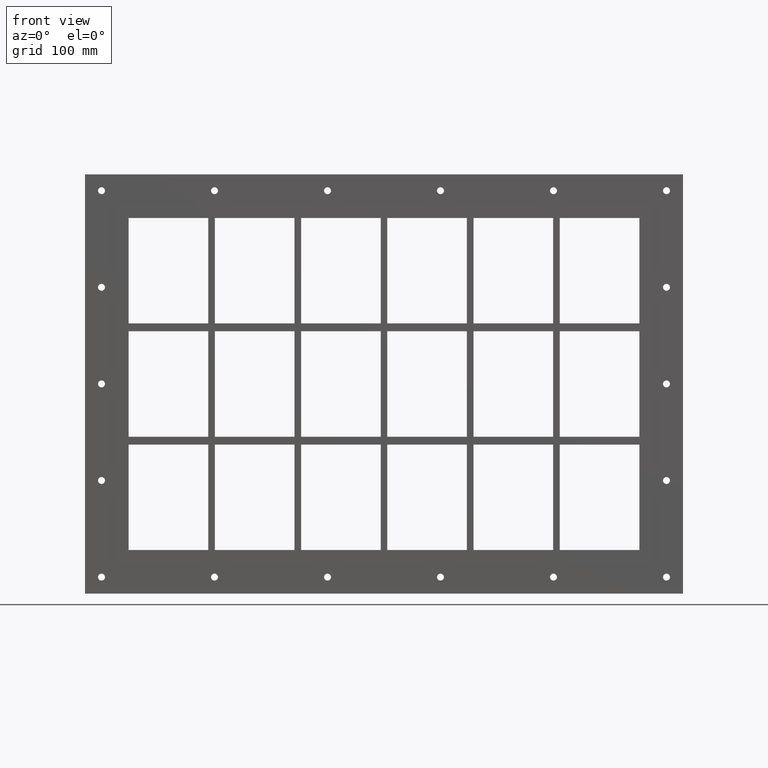
[diagram: clean part render]
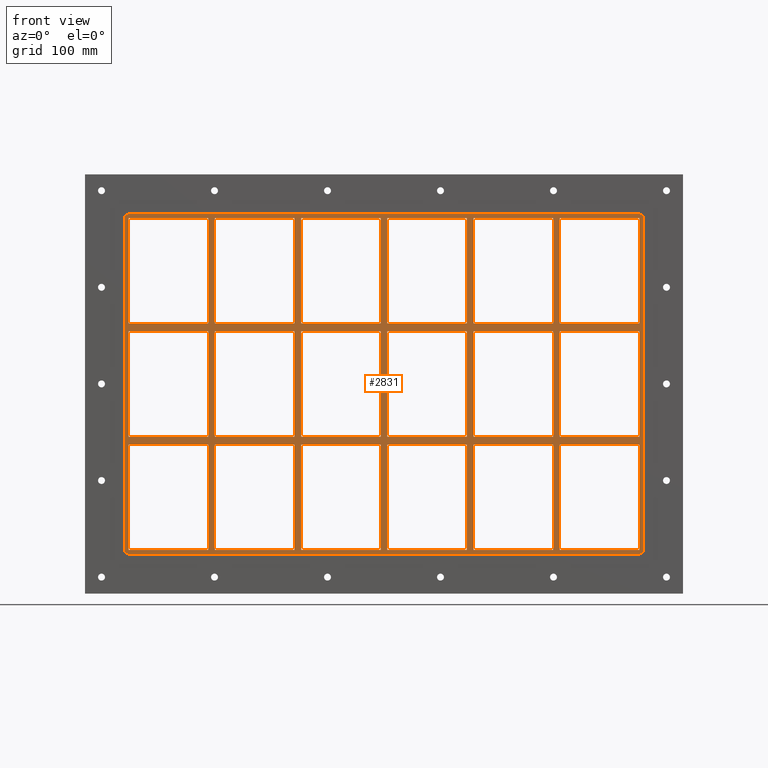
[diagram: same view with one face highlighted and labeled with its STEP entity id]
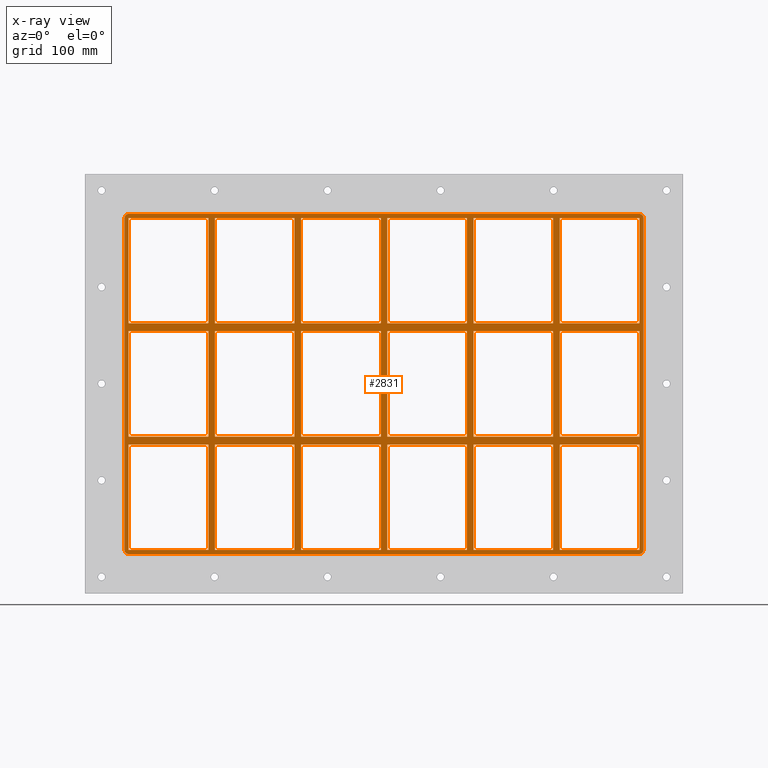
[diagram: x-ray of the same camera — body ghosted, the highlighted face saturated]
A machine part, front view. The second image highlights one B-rep face of the part: STEP entity #2831.
The next image is the same camera in x-ray: the body ghosted, the highlighted face saturated — about 0% of this face is hidden behind the body in this view.
In plain terms, the highlighted planar face has unit normal (0, 1, 0).
Its self-contained STEP definition (entity closure, byte-faithful):
#577=CARTESIAN_POINT('',(-266.00000000000216,-3.0,79.74999999998964));
#578=VERTEX_POINT('',#577);
#587=CARTESIAN_POINT('',(-386.50000000000045,-3.0,79.749999999989683));
#588=VERTEX_POINT('',#587);
#589=CARTESIAN_POINT('',(-266.00000000000227,-3.0,79.749999999989697));
#590=DIRECTION('',(-1.0,0.0,0.0));
#591=VECTOR('',#590,120.49999999999818);
#592=LINE('',#589,#591);
#593=EDGE_CURVE('',#578,#588,#592,.T.);
#617=CARTESIAN_POINT('',(-135.50000000000216,-3.0,79.74999999998974));
#618=VERTEX_POINT('',#617);
#627=CARTESIAN_POINT('',(-256.00000000000364,-3.0,79.749999999989711));
#628=VERTEX_POINT('',#627);
#629=CARTESIAN_POINT('',(-135.50000000000216,-3.0,79.74999999998974));
#630=DIRECTION('',(-1.0,0.0,0.0));
#631=VECTOR('',#630,120.50000000000148);
#632=LINE('',#629,#631);
#633=EDGE_CURVE('',#618,#628,#632,.T.);
#657=CARTESIAN_POINT('',(-5.000000000002132,-3.0,79.749999999989782));
#658=VERTEX_POINT('',#657);
#667=CARTESIAN_POINT('',(-125.50000000000367,-3.0,79.74999999998974));
#668=VERTEX_POINT('',#667);
#669=CARTESIAN_POINT('',(-5.00000000000216,-3.0,79.749999999989768));
#670=DIRECTION('',(-1.0,0.0,0.0));
#671=VECTOR('',#670,120.50000000000148);
#672=LINE('',#669,#671);
#673=EDGE_CURVE('',#658,#668,#672,.T.);
#697=CARTESIAN_POINT('',(125.49999999999791,-3.0,79.749999999989825));
#698=VERTEX_POINT('',#697);
#707=CARTESIAN_POINT('',(4.999999999996376,-3.0,79.749999999989782));
#708=VERTEX_POINT('',#707);
#709=CARTESIAN_POINT('',(125.4999999999979,-3.0,79.749999999989811));
#710=DIRECTION('',(-1.0,0.0,0.0));
#711=VECTOR('',#710,120.50000000000153);
#712=LINE('',#709,#711);
#713=EDGE_CURVE('',#698,#708,#712,.T.);
#739=CARTESIAN_POINT('',(265.99999999999642,-3.0,79.749999999989853));
#740=VERTEX_POINT('',#739);
#755=CARTESIAN_POINT('',(386.49999999999636,-3.0,79.749999999989882));
#756=VERTEX_POINT('',#755);
#763=CARTESIAN_POINT('',(386.49999999999636,-3.0,79.749999999989882));
#764=DIRECTION('',(-1.0,0.0,0.0));
#765=VECTOR('',#764,120.49999999999994);
#766=LINE('',#763,#765);
#767=EDGE_CURVE('',#756,#740,#766,.T.);
#777=CARTESIAN_POINT('',(255.99999999999793,-3.0,79.749999999989853));
#778=VERTEX_POINT('',#777);
#787=CARTESIAN_POINT('',(135.49999999999642,-3.0,79.749999999989825));
#788=VERTEX_POINT('',#787);
#789=CARTESIAN_POINT('',(255.99999999999793,-3.0,79.749999999989839));
#790=DIRECTION('',(-1.0,0.0,0.0));
#791=VECTOR('',#790,120.50000000000151);
#792=LINE('',#789,#791);
#793=EDGE_CURVE('',#778,#788,#792,.T.);
#819=CARTESIAN_POINT('',(-266.00000000000216,-3.0,91.750000000000114));
#820=VERTEX_POINT('',#819);
#835=CARTESIAN_POINT('',(-386.50000000000045,-3.0,91.750000000000085));
#836=VERTEX_POINT('',#835);
#843=CARTESIAN_POINT('',(-386.50000000000045,-3.0,91.750000000000085));
#844=DIRECTION('',(1.0,0.0,0.0));
#845=VECTOR('',#844,120.49999999999835);
#846=LINE('',#843,#845);
#847=EDGE_CURVE('',#836,#820,#846,.T.);
#857=CARTESIAN_POINT('',(265.99999999999636,-3.0,91.750000000000085));
#858=VERTEX_POINT('',#857);
#867=CARTESIAN_POINT('',(386.50000000000023,-3.0,91.750000000000085));
#868=VERTEX_POINT('',#867);
#869=CARTESIAN_POINT('',(265.99999999999636,-3.0,91.750000000000085));
#870=DIRECTION('',(1.0,0.0,0.0));
#871=VECTOR('',#870,120.50000000000387);
#872=LINE('',#869,#871);
#873=EDGE_CURVE('',#858,#868,#872,.T.);
#899=CARTESIAN_POINT('',(-135.50000000000213,-3.0,91.750000000000085));
#900=VERTEX_POINT('',#899);
#915=CARTESIAN_POINT('',(-256.00000000000364,-3.0,91.750000000000085));
#916=VERTEX_POINT('',#915);
#923=CARTESIAN_POINT('',(-256.00000000000364,-3.0,91.750000000000085));
#924=DIRECTION('',(1.0,0.0,0.0));
#925=VECTOR('',#924,120.50000000000153);
#926=LINE('',#923,#925);
#927=EDGE_CURVE('',#916,#900,#926,.T.);
#939=CARTESIAN_POINT('',(-5.000000000002132,-3.0,91.750000000000085));
#940=VERTEX_POINT('',#939);
#955=CARTESIAN_POINT('',(-125.50000000000364,-3.0,91.750000000000085));
#956=VERTEX_POINT('',#955);
#963=CARTESIAN_POINT('',(-125.50000000000358,-3.0,91.750000000000085));
#964=DIRECTION('',(1.0,0.0,0.0));
#965=VECTOR('',#964,120.50000000000148);
#966=LINE('',#963,#965);
#967=EDGE_CURVE('',#956,#940,#966,.T.);
#979=CARTESIAN_POINT('',(125.49999999999791,-3.0,91.750000000000085));
#980=VERTEX_POINT('',#979);
#995=CARTESIAN_POINT('',(4.999999999996376,-3.0,91.750000000000085));
#996=VERTEX_POINT('',#995);
#1003=CARTESIAN_POINT('',(4.999999999996419,-3.0,91.750000000000085));
#1004=DIRECTION('',(1.0,0.0,0.0));
#1005=VECTOR('',#1004,120.50000000000153);
#1006=LINE('',#1003,#1005);
#1007=EDGE_CURVE('',#996,#980,#1006,.T.);
#1019=CARTESIAN_POINT('',(255.99999999999781,-3.0,91.750000000000085));
#1020=VERTEX_POINT('',#1019);
#1035=CARTESIAN_POINT('',(135.49999999999642,-3.0,91.750000000000085));
#1036=VERTEX_POINT('',#1035);
#1043=CARTESIAN_POINT('',(135.49999999999648,-3.0,91.750000000000085));
#1044=DIRECTION('',(1.0,0.0,0.0));
#1045=VECTOR('',#1044,120.50000000000136);
#1046=LINE('',#1043,#1045);
#1047=EDGE_CURVE('',#1036,#1020,#1046,.T.);
#1066=CARTESIAN_POINT('',(-386.50000000000006,-3.0,251.25));
#1067=VERTEX_POINT('',#1066);
#1074=CARTESIAN_POINT('',(-386.50000000000011,-3.0,91.750000000000085));
#1075=DIRECTION('',(0.0,0.0,1.0));
#1076=VECTOR('',#1075,159.49999999999991);
#1077=LINE('',#1074,#1076);
#1078=EDGE_CURVE('',#836,#1067,#1077,.T.);
#1097=CARTESIAN_POINT('',(386.50000000000023,-3.0,-79.749999999999943));
#1098=VERTEX_POINT('',#1097);
#1105=CARTESIAN_POINT('',(386.50000000000006,-3.0,79.749999999989882));
#1106=DIRECTION('',(0.0,0.0,-1.0));
#1107=VECTOR('',#1106,159.49999999998983);
#1108=LINE('',#1105,#1107);
#1109=EDGE_CURVE('',#756,#1098,#1108,.T.);
#1120=CARTESIAN_POINT('',(386.50000000000006,-3.0,251.25));
#1121=VERTEX_POINT('',#1120);
#1122=CARTESIAN_POINT('',(386.50000000000006,-3.0,251.25));
#1123=DIRECTION('',(0.0,0.0,-1.0));
#1124=VECTOR('',#1123,159.49999999999991);
#1125=LINE('',#1122,#1124);
#1126=EDGE_CURVE('',#1121,#868,#1125,.T.);
#1151=CARTESIAN_POINT('',(255.9999999999979,-3.0,251.25));
#1152=VERTEX_POINT('',#1151);
#1153=CARTESIAN_POINT('',(255.9999999999979,-3.0,91.750000000000114));
#1154=DIRECTION('',(0.0,0.0,1.0));
#1155=VECTOR('',#1154,159.49999999999989);
#1156=LINE('',#1153,#1155);
#1157=EDGE_CURVE('',#1020,#1152,#1156,.T.);
#1190=CARTESIAN_POINT('',(265.99999999999642,-3.0,251.25));
#1191=VERTEX_POINT('',#1190);
#1198=CARTESIAN_POINT('',(265.99999999999642,-3.0,251.25));
#1199=DIRECTION('',(0.0,0.0,-1.0));
#1200=VECTOR('',#1199,159.49999999999991);
#1201=LINE('',#1198,#1200);
#1202=EDGE_CURVE('',#1191,#858,#1201,.T.);
#1213=CARTESIAN_POINT('',(125.49999999999787,-3.0,251.25));
#1214=VERTEX_POINT('',#1213);
#1215=CARTESIAN_POINT('',(125.49999999999791,-3.0,91.750000000000114));
#1216=DIRECTION('',(0.0,0.0,1.0));
#1217=VECTOR('',#1216,159.49999999999989);
#1218=LINE('',#1215,#1217);
#1219=EDGE_CURVE('',#980,#1214,#1218,.T.);
#1252=CARTESIAN_POINT('',(135.49999999999642,-3.0,251.25));
#1253=VERTEX_POINT('',#1252);
#1260=CARTESIAN_POINT('',(135.49999999999642,-3.0,251.25));
#1261=DIRECTION('',(0.0,0.0,-1.0));
#1262=VECTOR('',#1261,159.49999999999991);
#1263=LINE('',#1260,#1262);
#1264=EDGE_CURVE('',#1253,#1036,#1263,.T.);
#1275=CARTESIAN_POINT('',(-5.000000000002167,-3.0,251.25));
#1276=VERTEX_POINT('',#1275);
#1277=CARTESIAN_POINT('',(-5.000000000002133,-3.0,91.750000000000114));
#1278=DIRECTION('',(0.0,0.0,1.0));
#1279=VECTOR('',#1278,159.49999999999989);
#1280=LINE('',#1277,#1279);
#1281=EDGE_CURVE('',#940,#1276,#1280,.T.);
#1314=CARTESIAN_POINT('',(4.999999999996376,-3.0,251.25));
#1315=VERTEX_POINT('',#1314);
#1322=CARTESIAN_POINT('',(4.999999999996376,-3.0,251.25));
#1323=DIRECTION('',(0.0,0.0,-1.0));
#1324=VECTOR('',#1323,159.49999999999991);
#1325=LINE('',#1322,#1324);
#1326=EDGE_CURVE('',#1315,#996,#1325,.T.);
#1337=CARTESIAN_POINT('',(-135.50000000000216,-3.0,251.25));
#1338=VERTEX_POINT('',#1337);
#1339=CARTESIAN_POINT('',(-135.50000000000216,-3.0,91.750000000000114));
#1340=DIRECTION('',(0.0,0.0,1.0));
#1341=VECTOR('',#1340,159.49999999999989);
#1342=LINE('',#1339,#1341);
#1343=EDGE_CURVE('',#900,#1338,#1342,.T.);
#1376=CARTESIAN_POINT('',(-125.50000000000364,-3.0,251.25));
#1377=VERTEX_POINT('',#1376);
#1384=CARTESIAN_POINT('',(-125.50000000000364,-3.0,251.25));
#1385=DIRECTION('',(0.0,0.0,-1.0));
#1386=VECTOR('',#1385,159.49999999999991);
#1387=LINE('',#1384,#1386);
#1388=EDGE_CURVE('',#1377,#956,#1387,.T.);
#1399=CARTESIAN_POINT('',(-266.00000000000216,-3.0,251.25));
#1400=VERTEX_POINT('',#1399);
#1401=CARTESIAN_POINT('',(-266.0000000000021,-3.0,91.750000000000114));
#1402=DIRECTION('',(0.0,0.0,1.0));
#1403=VECTOR('',#1402,159.49999999999989);
#1404=LINE('',#1401,#1403);
#1405=EDGE_CURVE('',#820,#1400,#1404,.T.);
#1438=CARTESIAN_POINT('',(-266.0000000000021,-3.0,-79.749999999999943));
#1439=VERTEX_POINT('',#1438);
#1446=CARTESIAN_POINT('',(-266.0000000000021,-3.0,-79.749999999999943));
#1447=DIRECTION('',(0.0,0.0,1.0));
#1448=VECTOR('',#1447,159.4999999999896);
#1449=LINE('',#1446,#1448);
#1450=EDGE_CURVE('',#1439,#578,#1449,.T.);
#1469=CARTESIAN_POINT('',(-256.00000000000364,-3.0,251.25));
#1470=VERTEX_POINT('',#1469);
#1477=CARTESIAN_POINT('',(-256.00000000000364,-3.0,251.25));
#1478=DIRECTION('',(0.0,0.0,-1.0));
#1479=VECTOR('',#1478,159.49999999999991);
#1480=LINE('',#1477,#1479);
#1481=EDGE_CURVE('',#1470,#916,#1480,.T.);
#1975=CARTESIAN_POINT('',(255.99999999999795,-3.0,-79.749999999999943));
#1976=VERTEX_POINT('',#1975);
#1983=CARTESIAN_POINT('',(255.99999999999795,-3.0,-79.749999999999943));
#1984=DIRECTION('',(0.0,0.0,1.0));
#1985=VECTOR('',#1984,159.49999999998983);
#1986=LINE('',#1983,#1985);
#1987=EDGE_CURVE('',#1976,#778,#1986,.T.);
#1997=CARTESIAN_POINT('',(255.99999999999795,-3.0,-91.750000000010175));
#1998=VERTEX_POINT('',#1997);
#2006=CARTESIAN_POINT('',(255.99999999999798,-3.0,-251.25));
#2007=VERTEX_POINT('',#2006);
#2014=CARTESIAN_POINT('',(255.99999999999798,-3.0,-251.25));
#2015=DIRECTION('',(0.0,0.0,1.0));
#2016=VECTOR('',#2015,159.49999999998983);
#2017=LINE('',#2014,#2016);
#2018=EDGE_CURVE('',#2007,#1998,#2017,.T.);
#2029=CARTESIAN_POINT('',(265.99999999999642,-3.0,-79.749999999999943));
#2030=VERTEX_POINT('',#2029);
#2031=CARTESIAN_POINT('',(265.99999999999642,-3.0,79.749999999989853));
#2032=DIRECTION('',(0.0,0.0,-1.0));
#2033=VECTOR('',#2032,159.4999999999898);
#2034=LINE('',#2031,#2033);
#2035=EDGE_CURVE('',#740,#2030,#2034,.T.);
#2052=CARTESIAN_POINT('',(265.99999999999642,-3.0,-91.750000000010132));
#2053=VERTEX_POINT('',#2052);
#2060=CARTESIAN_POINT('',(265.99999999999642,-3.0,-251.24999999998647));
#2061=VERTEX_POINT('',#2060);
#2062=CARTESIAN_POINT('',(265.99999999999642,-3.0,-91.750000000010118));
#2063=DIRECTION('',(0.0,0.0,-1.0));
#2064=VECTOR('',#2063,159.49999999997635);
#2065=LINE('',#2062,#2064);
#2066=EDGE_CURVE('',#2053,#2061,#2065,.T.);
#2085=CARTESIAN_POINT('',(125.49999999999795,-3.0,-79.749999999999943));
#2086=VERTEX_POINT('',#2085);
#2093=CARTESIAN_POINT('',(125.49999999999794,-3.0,-79.749999999999943));
#2094=DIRECTION('',(0.0,0.0,1.0));
#2095=VECTOR('',#2094,159.49999999998983);
#2096=LINE('',#2093,#2095);
#2097=EDGE_CURVE('',#2086,#698,#2096,.T.);
#2107=CARTESIAN_POINT('',(125.49999999999795,-3.0,-91.750000000010203));
#2108=VERTEX_POINT('',#2107);
#2116=CARTESIAN_POINT('',(125.49999999999798,-3.0,-251.25));
#2117=VERTEX_POINT('',#2116);
#2124=CARTESIAN_POINT('',(125.49999999999798,-3.0,-251.25));
#2125=DIRECTION('',(0.0,0.0,1.0));
#2126=VECTOR('',#2125,159.4999999999898);
#2127=LINE('',#2124,#2126);
#2128=EDGE_CURVE('',#2117,#2108,#2127,.T.);
#2139=CARTESIAN_POINT('',(135.49999999999642,-3.0,-79.749999999999943));
#2140=VERTEX_POINT('',#2139);
#2141=CARTESIAN_POINT('',(135.49999999999642,-3.0,79.749999999989825));
#2142=DIRECTION('',(0.0,0.0,-1.0));
#2143=VECTOR('',#2142,159.49999999998977);
#2144=LINE('',#2141,#2143);
#2145=EDGE_CURVE('',#788,#2140,#2144,.T.);
#2162=CARTESIAN_POINT('',(135.49999999999642,-3.0,-91.750000000010203));
#2163=VERTEX_POINT('',#2162);
#2170=CARTESIAN_POINT('',(135.49999999999642,-3.0,-251.24999999998647));
#2171=VERTEX_POINT('',#2170);
#2172=CARTESIAN_POINT('',(135.49999999999642,-3.0,-91.750000000010232));
#2173=DIRECTION('',(0.0,0.0,-1.0));
#2174=VECTOR('',#2173,159.49999999997624);
#2175=LINE('',#2172,#2174);
#2176=EDGE_CURVE('',#2163,#2171,#2175,.T.);
#2195=CARTESIAN_POINT('',(-5.000000000002097,-3.0,-79.749999999999943));
#2196=VERTEX_POINT('',#2195);
#2203=CARTESIAN_POINT('',(-5.000000000002097,-3.0,-79.749999999999943));
#2204=DIRECTION('',(0.0,0.0,1.0));
#2205=VECTOR('',#2204,159.49999999998971);
#2206=LINE('',#2203,#2205);
#2207=EDGE_CURVE('',#2196,#658,#2206,.T.);
#2217=CARTESIAN_POINT('',(-5.000000000002094,-3.0,-91.750000000010232));
#2218=VERTEX_POINT('',#2217);
#2226=CARTESIAN_POINT('',(-5.000000000002061,-3.0,-251.25));
#2227=VERTEX_POINT('',#2226);
#2234=CARTESIAN_POINT('',(-5.000000000002061,-3.0,-251.25));
#2235=DIRECTION('',(0.0,0.0,1.0));
#2236=VECTOR('',#2235,159.49999999998977);
#2237=LINE('',#2234,#2236);
#2238=EDGE_CURVE('',#2227,#2218,#2237,.T.);
#2249=CARTESIAN_POINT('',(4.999999999996376,-3.0,-79.749999999999943));
#2250=VERTEX_POINT('',#2249);
#2251=CARTESIAN_POINT('',(4.999999999996376,-3.0,79.749999999989768));
#2252=DIRECTION('',(0.0,0.0,-1.0));
#2253=VECTOR('',#2252,159.49999999998971);
#2254=LINE('',#2251,#2253);
#2255=EDGE_CURVE('',#708,#2250,#2254,.T.);
#2272=CARTESIAN_POINT('',(4.999999999996376,-3.0,-91.750000000010203));
#2273=VERTEX_POINT('',#2272);
#2280=CARTESIAN_POINT('',(4.999999999996376,-3.0,-251.24999999998647));
#2281=VERTEX_POINT('',#2280);
#2282=CARTESIAN_POINT('',(4.999999999996376,-3.0,-91.750000000010232));
#2283=DIRECTION('',(0.0,0.0,-1.0));
#2284=VECTOR('',#2283,159.49999999997624);
#2285=LINE('',#2282,#2284);
#2286=EDGE_CURVE('',#2273,#2281,#2285,.T.);
#2305=CARTESIAN_POINT('',(-135.5000000000021,-3.0,-79.749999999999943));
#2306=VERTEX_POINT('',#2305);
#2313=CARTESIAN_POINT('',(-135.5000000000021,-3.0,-79.749999999999943));
#2314=DIRECTION('',(0.0,0.0,1.0));
#2315=VECTOR('',#2314,159.49999999998965);
#2316=LINE('',#2313,#2315);
#2317=EDGE_CURVE('',#2306,#618,#2316,.T.);
#2327=CARTESIAN_POINT('',(-135.5000000000021,-3.0,-91.750000000010274));
#2328=VERTEX_POINT('',#2327);
#2336=CARTESIAN_POINT('',(-135.50000000000207,-3.0,-251.25));
#2337=VERTEX_POINT('',#2336);
#2344=CARTESIAN_POINT('',(-135.50000000000207,-3.0,-251.25));
#2345=DIRECTION('',(0.0,0.0,1.0));
#2346=VECTOR('',#2345,159.49999999998971);
#2347=LINE('',#2344,#2346);
#2348=EDGE_CURVE('',#2337,#2328,#2347,.T.);
#2359=CARTESIAN_POINT('',(-125.50000000000364,-3.0,-79.749999999999943));
#2360=VERTEX_POINT('',#2359);
#2361=CARTESIAN_POINT('',(-125.50000000000364,-3.0,79.74999999998974));
#2362=DIRECTION('',(0.0,0.0,-1.0));
#2363=VECTOR('',#2362,159.49999999998968);
#2364=LINE('',#2361,#2363);
#2365=EDGE_CURVE('',#668,#2360,#2364,.T.);
#2382=CARTESIAN_POINT('',(-125.50000000000364,-3.0,-91.750000000010274));
#2383=VERTEX_POINT('',#2382);
#2390=CARTESIAN_POINT('',(-125.50000000000364,-3.0,-251.24999999998647));
#2391=VERTEX_POINT('',#2390);
#2392=CARTESIAN_POINT('',(-125.50000000000364,-3.0,-91.750000000010289));
#2393=DIRECTION('',(0.0,0.0,-1.0));
#2394=VECTOR('',#2393,159.49999999997618);
#2395=LINE('',#2392,#2394);
#2396=EDGE_CURVE('',#2383,#2391,#2395,.T.);
#2415=CARTESIAN_POINT('',(-256.00000000000364,-3.0,-251.24999999998647));
#2416=VERTEX_POINT('',#2415);
#2423=CARTESIAN_POINT('',(-135.50000000000213,-3.0,-251.25));
#2424=DIRECTION('',(-1.0,0.0,0.0));
#2425=VECTOR('',#2424,120.50000000000151);
#2426=LINE('',#2423,#2425);
#2427=EDGE_CURVE('',#2337,#2416,#2426,.T.);
#2440=CARTESIAN_POINT('',(-5.000000000002075,-3.0,-251.25));
#2441=DIRECTION('',(-1.0,0.0,0.0));
#2442=VECTOR('',#2441,120.50000000000153);
#2443=LINE('',#2440,#2442);
#2444=EDGE_CURVE('',#2227,#2391,#2443,.T.);
#2457=CARTESIAN_POINT('',(125.49999999999798,-3.0,-251.25));
#2458=DIRECTION('',(-1.0,0.0,0.0));
#2459=VECTOR('',#2458,120.50000000000159);
#2460=LINE('',#2457,#2459);
#2461=EDGE_CURVE('',#2117,#2281,#2460,.T.);
#2474=CARTESIAN_POINT('',(255.99999999999798,-3.0,-251.25));
#2475=DIRECTION('',(-1.0,0.0,0.0));
#2476=VECTOR('',#2475,120.50000000000156);
#2477=LINE('',#2474,#2476);
#2478=EDGE_CURVE('',#2007,#2171,#2477,.T.);
#2489=CARTESIAN_POINT('',(386.50000000000006,-3.0,-251.25));
#2490=VERTEX_POINT('',#2489);
#2491=CARTESIAN_POINT('',(386.50000000000006,-3.0,-251.25));
#2492=DIRECTION('',(-1.0,0.0,0.0));
#2493=VECTOR('',#2492,120.50000000000364);
#2494=LINE('',#2491,#2493);
#2495=EDGE_CURVE('',#2490,#2061,#2494,.T.);
#2507=CARTESIAN_POINT('',(0.0,-3.0,0.0));
#2508=DIRECTION('',(0.0,1.0,0.0));
#2509=DIRECTION('',(0.0,0.0,1.0));
#2510=AXIS2_PLACEMENT_3D('',#2507,#2508,#2509);
#2511=PLANE('',#2510);
#2512=CARTESIAN_POINT('',(392.50000000000006,-3.0,-251.25));
#2513=VERTEX_POINT('',#2512);
#2514=CARTESIAN_POINT('',(386.50000000000006,-3.0,-257.25));
#2515=VERTEX_POINT('',#2514);
#2516=CARTESIAN_POINT('',(386.50000000000006,-3.0,-251.25));
#2517=DIRECTION('',(0.0,1.0,0.0));
#2518=DIRECTION('',(0.707106781186543,0.0,-0.707106781186552));
#2519=AXIS2_PLACEMENT_3D('',#2516,#2517,#2518);
#2520=CIRCLE('',#2519,6.000000000000001);
#2521=EDGE_CURVE('',#2513,#2515,#2520,.T.);
#2522=ORIENTED_EDGE('',*,*,#2521,.F.);
#2523=CARTESIAN_POINT('',(392.50000000000006,-3.0,251.25));
#2524=VERTEX_POINT('',#2523);
#2525=CARTESIAN_POINT('',(392.50000000000006,-3.0,-251.25));
#2526=DIRECTION('',(0.0,0.0,1.0));
#2527=VECTOR('',#2526,502.5);
#2528=LINE('',#2525,#2527);
#2529=EDGE_CURVE('',#2513,#2524,#2528,.T.);
#2530=ORIENTED_EDGE('',*,*,#2529,.T.);
#2531=CARTESIAN_POINT('',(386.5,-3.0,257.25));
#2532=VERTEX_POINT('',#2531);
#2533=CARTESIAN_POINT('',(386.50000000000006,-3.0,251.25));
#2534=DIRECTION('',(0.0,1.0,0.0));
#2535=DIRECTION('',(0.707106781186543,0.0,0.707106781186552));
#2536=AXIS2_PLACEMENT_3D('',#2533,#2534,#2535);
#2537=CIRCLE('',#2536,6.000000000000001);
#2538=EDGE_CURVE('',#2532,#2524,#2537,.T.);
#2539=ORIENTED_EDGE('',*,*,#2538,.F.);
#2540=CARTESIAN_POINT('',(-386.50000000000006,-3.0,257.25));
#2541=VERTEX_POINT('',#2540);
#2542=CARTESIAN_POINT('',(386.49999999999994,-3.0,257.25));
#2543=DIRECTION('',(-1.0,0.0,0.0));
#2544=VECTOR('',#2543,773.0);
#2545=LINE('',#2542,#2544);
#2546=EDGE_CURVE('',#2532,#2541,#2545,.T.);
#2547=ORIENTED_EDGE('',*,*,#2546,.T.);
#2548=CARTESIAN_POINT('',(-392.50000000000006,-3.0,251.25));
#2549=VERTEX_POINT('',#2548);
#2550=CARTESIAN_POINT('',(-386.50000000000006,-3.0,251.25));
#2551=DIRECTION('',(0.0,1.0,0.0));
#2552=DIRECTION('',(-0.707106781186543,0.0,0.707106781186552));
#2553=AXIS2_PLACEMENT_3D('',#2550,#2551,#2552);
#2554=CIRCLE('',#2553,6.000000000000001);
#2555=EDGE_CURVE('',#2549,#2541,#2554,.T.);
#2556=ORIENTED_EDGE('',*,*,#2555,.F.);
#2557=CARTESIAN_POINT('',(-392.50000000000006,-3.0,-251.25));
#2558=VERTEX_POINT('',#2557);
#2559=CARTESIAN_POINT('',(-392.50000000000006,-3.0,251.25));
#2560=DIRECTION('',(0.0,0.0,-1.0));
#2561=VECTOR('',#2560,502.5);
#2562=LINE('',#2559,#2561);
#2563=EDGE_CURVE('',#2549,#2558,#2562,.T.);
#2564=ORIENTED_EDGE('',*,*,#2563,.T.);
#2565=CARTESIAN_POINT('',(-386.5,-3.0,-257.25));
#2566=VERTEX_POINT('',#2565);
#2567=CARTESIAN_POINT('',(-386.50000000000006,-3.0,-251.25));
#2568=DIRECTION('',(0.0,1.0,0.0));
#2569=DIRECTION('',(-0.707106781186543,0.0,-0.707106781186552));
#2570=AXIS2_PLACEMENT_3D('',#2567,#2568,#2569);
#2571=CIRCLE('',#2570,6.000000000000001);
#2572=EDGE_CURVE('',#2566,#2558,#2571,.T.);
#2573=ORIENTED_EDGE('',*,*,#2572,.F.);
#2574=CARTESIAN_POINT('',(-386.49999999999994,-3.0,-257.25));
#2575=DIRECTION('',(1.0,0.0,0.0));
#2576=VECTOR('',#2575,773.0);
#2577=LINE('',#2574,#2576);
#2578=EDGE_CURVE('',#2566,#2515,#2577,.T.);
#2579=ORIENTED_EDGE('',*,*,#2578,.T.);
#2580=EDGE_LOOP('',(#2522,#2530,#2539,#2547,#2556,#2564,#2573,#2579));
#2581=FACE_OUTER_BOUND('',#2580,.T.);
#2582=ORIENTED_EDGE('',*,*,#1078,.T.);
#2583=CARTESIAN_POINT('',(-386.50000000000006,-3.0,251.25));
#2584=DIRECTION('',(1.0,0.0,0.0));
#2585=VECTOR('',#2584,120.4999999999979);
#2586=LINE('',#2583,#2585);
#2587=EDGE_CURVE('',#1067,#1400,#2586,.T.);
#2588=ORIENTED_EDGE('',*,*,#2587,.T.);
#2589=ORIENTED_EDGE('',*,*,#1405,.F.);
#2590=ORIENTED_EDGE('',*,*,#847,.F.);
#2591=EDGE_LOOP('',(#2582,#2588,#2589,#2590));
#2592=FACE_BOUND('',#2591,.T.);
#2593=ORIENTED_EDGE('',*,*,#1109,.T.);
#2594=CARTESIAN_POINT('',(265.99999999999636,-3.0,-79.749999999999943));
#2595=DIRECTION('',(1.0,0.0,0.0));
#2596=VECTOR('',#2595,120.50000000000387);
#2597=LINE('',#2594,#2596);
#2598=EDGE_CURVE('',#2030,#1098,#2597,.T.);
#2599=ORIENTED_EDGE('',*,*,#2598,.F.);
#2600=ORIENTED_EDGE('',*,*,#2035,.F.);
#2601=ORIENTED_EDGE('',*,*,#767,.F.);
#2602=EDGE_LOOP('',(#2593,#2599,#2600,#2601));
#2603=FACE_BOUND('',#2602,.T.);
#2604=ORIENTED_EDGE('',*,*,#1987,.F.);
#2605=CARTESIAN_POINT('',(135.49999999999648,-3.0,-79.749999999999943));
#2606=DIRECTION('',(1.0,0.0,0.0));
#2607=VECTOR('',#2606,120.50000000000148);
#2608=LINE('',#2605,#2607);
#2609=EDGE_CURVE('',#2140,#1976,#2608,.T.);
#2610=ORIENTED_EDGE('',*,*,#2609,.F.);
#2611=ORIENTED_EDGE('',*,*,#2145,.F.);
#2612=ORIENTED_EDGE('',*,*,#793,.F.);
#2613=EDGE_LOOP('',(#2604,#2610,#2611,#2612));
#2614=FACE_BOUND('',#2613,.T.);
#2615=ORIENTED_EDGE('',*,*,#2097,.F.);
#2616=CARTESIAN_POINT('',(4.999999999996419,-3.0,-79.749999999999943));
#2617=DIRECTION('',(1.0,0.0,0.0));
#2618=VECTOR('',#2617,120.50000000000159);
#2619=LINE('',#2616,#2618);
#2620=EDGE_CURVE('',#2250,#2086,#2619,.T.);
#2621=ORIENTED_EDGE('',*,*,#2620,.F.);
#2622=ORIENTED_EDGE('',*,*,#2255,.F.);
#2623=ORIENTED_EDGE('',*,*,#713,.F.);
#2624=EDGE_LOOP('',(#2615,#2621,#2622,#2623));
#2625=FACE_BOUND('',#2624,.T.);
#2626=ORIENTED_EDGE('',*,*,#2207,.F.);
#2627=CARTESIAN_POINT('',(-125.50000000000358,-3.0,-79.749999999999943));
#2628=DIRECTION('',(1.0,0.0,0.0));
#2629=VECTOR('',#2628,120.50000000000148);
#2630=LINE('',#2627,#2629);
#2631=EDGE_CURVE('',#2360,#2196,#2630,.T.);
#2632=ORIENTED_EDGE('',*,*,#2631,.F.);
#2633=ORIENTED_EDGE('',*,*,#2365,.F.);
#2634=ORIENTED_EDGE('',*,*,#673,.F.);
#2635=EDGE_LOOP('',(#2626,#2632,#2633,#2634));
#2636=FACE_BOUND('',#2635,.T.);
#2637=ORIENTED_EDGE('',*,*,#2317,.F.);
#2638=CARTESIAN_POINT('',(-256.00000000000364,-3.0,-79.749999999999943));
#2639=VERTEX_POINT('',#2638);
#2640=CARTESIAN_POINT('',(-256.00000000000364,-3.0,-79.749999999999943));
#2641=DIRECTION('',(1.0,0.0,0.0));
#2642=VECTOR('',#2641,120.50000000000156);
#2643=LINE('',#2640,#2642);
#2644=EDGE_CURVE('',#2639,#2306,#2643,.T.);
#2645=ORIENTED_EDGE('',*,*,#2644,.F.);
#2646=CARTESIAN_POINT('',(-256.00000000000364,-3.0,79.749999999989711));
#2647=DIRECTION('',(0.0,0.0,-1.0));
#2648=VECTOR('',#2647,159.49999999998965);
#2649=LINE('',#2646,#2648);
#2650=EDGE_CURVE('',#628,#2639,#2649,.T.);
#2651=ORIENTED_EDGE('',*,*,#2650,.F.);
#2652=ORIENTED_EDGE('',*,*,#633,.F.);
#2653=EDGE_LOOP('',(#2637,#2645,#2651,#2652));
#2654=FACE_BOUND('',#2653,.T.);
#2655=ORIENTED_EDGE('',*,*,#1047,.F.);
#2656=ORIENTED_EDGE('',*,*,#1264,.F.);
#2657=CARTESIAN_POINT('',(135.49999999999642,-3.0,251.25));
#2658=DIRECTION('',(1.0,0.0,0.0));
#2659=VECTOR('',#2658,120.50000000000148);
#2660=LINE('',#2657,#2659);
#2661=EDGE_CURVE('',#1253,#1152,#2660,.T.);
#2662=ORIENTED_EDGE('',*,*,#2661,.T.);
#2663=ORIENTED_EDGE('',*,*,#1157,.F.);
#2664=EDGE_LOOP('',(#2655,#2656,#2662,#2663));
#2665=FACE_BOUND('',#2664,.T.);
#2666=ORIENTED_EDGE('',*,*,#1007,.F.);
#2667=ORIENTED_EDGE('',*,*,#1326,.F.);
#2668=CARTESIAN_POINT('',(4.99999999999639,-3.0,251.25));
#2669=DIRECTION('',(1.0,0.0,0.0));
#2670=VECTOR('',#2669,120.50000000000151);
#2671=LINE('',#2668,#2670);
#2672=EDGE_CURVE('',#1315,#1214,#2671,.T.);
#2673=ORIENTED_EDGE('',*,*,#2672,.T.);
#2674=ORIENTED_EDGE('',*,*,#1219,.F.);
#2675=EDGE_LOOP('',(#2666,#2667,#2673,#2674));
#2676=FACE_BOUND('',#2675,.T.);
#2677=ORIENTED_EDGE('',*,*,#967,.F.);
#2678=ORIENTED_EDGE('',*,*,#1388,.F.);
#2679=CARTESIAN_POINT('',(-125.50000000000362,-3.0,251.25));
#2680=DIRECTION('',(1.0,0.0,0.0));
#2681=VECTOR('',#2680,120.50000000000146);
#2682=LINE('',#2679,#2681);
#2683=EDGE_CURVE('',#1377,#1276,#2682,.T.);
#2684=ORIENTED_EDGE('',*,*,#2683,.T.);
#2685=ORIENTED_EDGE('',*,*,#1281,.F.);
#2686=EDGE_LOOP('',(#2677,#2678,#2684,#2685));
#2687=FACE_BOUND('',#2686,.T.);
#2688=ORIENTED_EDGE('',*,*,#927,.F.);
#2689=ORIENTED_EDGE('',*,*,#1481,.F.);
#2690=CARTESIAN_POINT('',(-256.00000000000364,-3.0,251.25));
#2691=DIRECTION('',(1.0,0.0,0.0));
#2692=VECTOR('',#2691,120.50000000000148);
#2693=LINE('',#2690,#2692);
#2694=EDGE_CURVE('',#1470,#1338,#2693,.T.);
#2695=ORIENTED_EDGE('',*,*,#2694,.T.);
#2696=ORIENTED_EDGE('',*,*,#1343,.F.);
#2697=EDGE_LOOP('',(#2688,#2689,#2695,#2696));
#2698=FACE_BOUND('',#2697,.T.);
#2699=ORIENTED_EDGE('',*,*,#593,.F.);
#2700=ORIENTED_EDGE('',*,*,#1450,.F.);
#2701=CARTESIAN_POINT('',(-386.50000000000045,-3.0,-79.749999999999943));
#2702=VERTEX_POINT('',#2701);
#2703=CARTESIAN_POINT('',(-386.50000000000045,-3.0,-79.749999999999943));
#2704=DIRECTION('',(1.0,0.0,0.0));
#2705=VECTOR('',#2704,120.49999999999841);
#2706=LINE('',#2703,#2705);
#2707=EDGE_CURVE('',#2702,#1439,#2706,.T.);
#2708=ORIENTED_EDGE('',*,*,#2707,.F.);
#2709=CARTESIAN_POINT('',(-386.50000000000011,-3.0,-79.749999999999943));
#2710=DIRECTION('',(0.0,0.0,1.0));
#2711=VECTOR('',#2710,159.49999999998963);
#2712=LINE('',#2709,#2711);
#2713=EDGE_CURVE('',#2702,#588,#2712,.T.);
#2714=ORIENTED_EDGE('',*,*,#2713,.T.);
#2715=EDGE_LOOP('',(#2699,#2700,#2708,#2714));
#2716=FACE_BOUND('',#2715,.T.);
#2717=ORIENTED_EDGE('',*,*,#873,.F.);
#2718=ORIENTED_EDGE('',*,*,#1202,.F.);
#2719=CARTESIAN_POINT('',(265.99999999999642,-3.0,251.25));
#2720=DIRECTION('',(1.0,0.0,0.0));
#2721=VECTOR('',#2720,120.50000000000364);
#2722=LINE('',#2719,#2721);
#2723=EDGE_CURVE('',#1191,#1121,#2722,.T.);
#2724=ORIENTED_EDGE('',*,*,#2723,.T.);
#2725=ORIENTED_EDGE('',*,*,#1126,.T.);
#2726=EDGE_LOOP('',(#2717,#2718,#2724,#2725));
#2727=FACE_BOUND('',#2726,.T.);
#2728=ORIENTED_EDGE('',*,*,#2478,.T.);
#2729=ORIENTED_EDGE('',*,*,#2176,.F.);
#2730=CARTESIAN_POINT('',(255.99999999999795,-3.0,-91.750000000010175));
#2731=DIRECTION('',(-1.0,0.0,0.0));
#2732=VECTOR('',#2731,120.50000000000153);
#2733=LINE('',#2730,#2732);
#2734=EDGE_CURVE('',#1998,#2163,#2733,.T.);
#2735=ORIENTED_EDGE('',*,*,#2734,.F.);
#2736=ORIENTED_EDGE('',*,*,#2018,.F.);
#2737=EDGE_LOOP('',(#2728,#2729,#2735,#2736));
#2738=FACE_BOUND('',#2737,.T.);
#2739=ORIENTED_EDGE('',*,*,#2461,.T.);
#2740=ORIENTED_EDGE('',*,*,#2286,.F.);
#2741=CARTESIAN_POINT('',(125.49999999999795,-3.0,-91.750000000010203));
#2742=DIRECTION('',(-1.0,0.0,0.0));
#2743=VECTOR('',#2742,120.50000000000159);
#2744=LINE('',#2741,#2743);
#2745=EDGE_CURVE('',#2108,#2273,#2744,.T.);
#2746=ORIENTED_EDGE('',*,*,#2745,.F.);
#2747=ORIENTED_EDGE('',*,*,#2128,.F.);
#2748=EDGE_LOOP('',(#2739,#2740,#2746,#2747));
#2749=FACE_BOUND('',#2748,.T.);
#2750=ORIENTED_EDGE('',*,*,#2444,.T.);
#2751=ORIENTED_EDGE('',*,*,#2396,.F.);
#2752=CARTESIAN_POINT('',(-5.000000000002046,-3.0,-91.750000000010246));
#2753=DIRECTION('',(-1.0,0.0,0.0));
#2754=VECTOR('',#2753,120.50000000000159);
#2755=LINE('',#2752,#2754);
#2756=EDGE_CURVE('',#2218,#2383,#2755,.T.);
#2757=ORIENTED_EDGE('',*,*,#2756,.F.);
#2758=ORIENTED_EDGE('',*,*,#2238,.F.);
#2759=EDGE_LOOP('',(#2750,#2751,#2757,#2758));
#2760=FACE_BOUND('',#2759,.T.);
#2761=ORIENTED_EDGE('',*,*,#2427,.T.);
#2762=CARTESIAN_POINT('',(-256.00000000000364,-3.0,-91.750000000010317));
#2763=VERTEX_POINT('',#2762);
#2764=CARTESIAN_POINT('',(-256.00000000000364,-3.0,-91.750000000010346));
#2765=DIRECTION('',(0.0,0.0,-1.0));
#2766=VECTOR('',#2765,159.49999999997613);
#2767=LINE('',#2764,#2766);
#2768=EDGE_CURVE('',#2763,#2416,#2767,.T.);
#2769=ORIENTED_EDGE('',*,*,#2768,.F.);
#2770=CARTESIAN_POINT('',(-135.50000000000205,-3.0,-91.750000000010274));
#2771=DIRECTION('',(-1.0,0.0,0.0));
#2772=VECTOR('',#2771,120.50000000000159);
#2773=LINE('',#2770,#2772);
#2774=EDGE_CURVE('',#2328,#2763,#2773,.T.);
#2775=ORIENTED_EDGE('',*,*,#2774,.F.);
#2776=ORIENTED_EDGE('',*,*,#2348,.F.);
#2777=EDGE_LOOP('',(#2761,#2769,#2775,#2776));
#2778=FACE_BOUND('',#2777,.T.);
#2779=ORIENTED_EDGE('',*,*,#2066,.F.);
#2780=CARTESIAN_POINT('',(386.49999999999636,-3.0,-91.750000000010132));
#2781=VERTEX_POINT('',#2780);
#2782=CARTESIAN_POINT('',(386.49999999999636,-3.0,-91.750000000010132));
#2783=DIRECTION('',(-1.0,0.0,0.0));
#2784=VECTOR('',#2783,120.49999999999994);
#2785=LINE('',#2782,#2784);
#2786=EDGE_CURVE('',#2781,#2053,#2785,.T.);
#2787=ORIENTED_EDGE('',*,*,#2786,.F.);
#2788=CARTESIAN_POINT('',(386.50000000000006,-3.0,-91.750000000010118));
#2789=DIRECTION('',(0.0,0.0,-1.0));
#2790=VECTOR('',#2789,159.49999999998988);
#2791=LINE('',#2788,#2790);
#2792=EDGE_CURVE('',#2781,#2490,#2791,.T.);
#2793=ORIENTED_EDGE('',*,*,#2792,.T.);
#2794=ORIENTED_EDGE('',*,*,#2495,.T.);
#2795=EDGE_LOOP('',(#2779,#2787,#2793,#2794));
#2796=FACE_BOUND('',#2795,.T.);
#2797=CARTESIAN_POINT('',(-266.00000000000205,-3.0,-91.750000000010317));
#2798=VERTEX_POINT('',#2797);
#2799=CARTESIAN_POINT('',(-386.50000000000045,-3.0,-91.750000000010346));
#2800=VERTEX_POINT('',#2799);
#2801=CARTESIAN_POINT('',(-266.00000000000205,-3.0,-91.750000000010317));
#2802=DIRECTION('',(-1.0,0.0,0.0));
#2803=VECTOR('',#2802,120.49999999999841);
#2804=LINE('',#2801,#2803);
#2805=EDGE_CURVE('',#2798,#2800,#2804,.T.);
#2806=ORIENTED_EDGE('',*,*,#2805,.F.);
#2807=CARTESIAN_POINT('',(-266.00000000000205,-3.0,-251.25));
#2808=VERTEX_POINT('',#2807);
#2809=CARTESIAN_POINT('',(-266.00000000000205,-3.0,-251.25));
#2810=DIRECTION('',(0.0,0.0,1.0));
#2811=VECTOR('',#2810,159.49999999998968);
#2812=LINE('',#2809,#2811);
#2813=EDGE_CURVE('',#2808,#2798,#2812,.T.);
#2814=ORIENTED_EDGE('',*,*,#2813,.F.);
#2815=CARTESIAN_POINT('',(-386.50000000000006,-3.0,-251.25));
#2816=VERTEX_POINT('',#2815);
#2817=CARTESIAN_POINT('',(-266.00000000000205,-3.0,-251.25));
#2818=DIRECTION('',(-1.0,0.0,0.0));
#2819=VECTOR('',#2818,120.49999999999807);
#2820=LINE('',#2817,#2819);
#2821=EDGE_CURVE('',#2808,#2816,#2820,.T.);
#2822=ORIENTED_EDGE('',*,*,#2821,.T.);
#2823=CARTESIAN_POINT('',(-386.50000000000011,-3.0,-251.25));
#2824=DIRECTION('',(0.0,0.0,1.0));
#2825=VECTOR('',#2824,159.49999999998965);
#2826=LINE('',#2823,#2825);
#2827=EDGE_CURVE('',#2816,#2800,#2826,.T.);
#2828=ORIENTED_EDGE('',*,*,#2827,.T.);
#2829=EDGE_LOOP('',(#2806,#2814,#2822,#2828));
#2830=FACE_BOUND('',#2829,.T.);
#2831=ADVANCED_FACE('',(#2581,#2592,#2603,#2614,#2625,#2636,#2654,#2665,#2676,#2687,#2698,#2716,#2727,#2738,#2749,#2760,#2778,#2796,#2830),#2511,.F.);